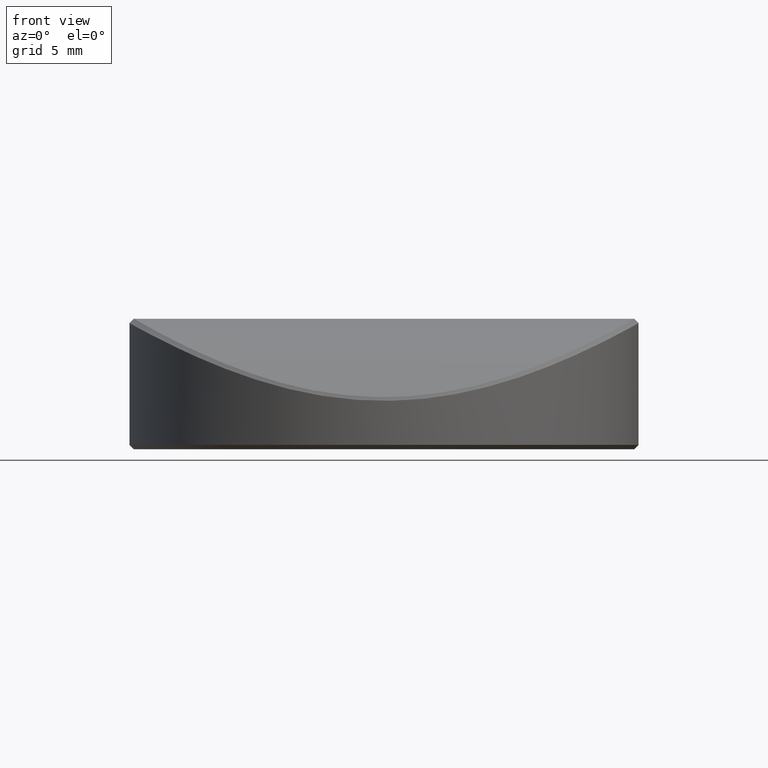
[diagram: clean part render]
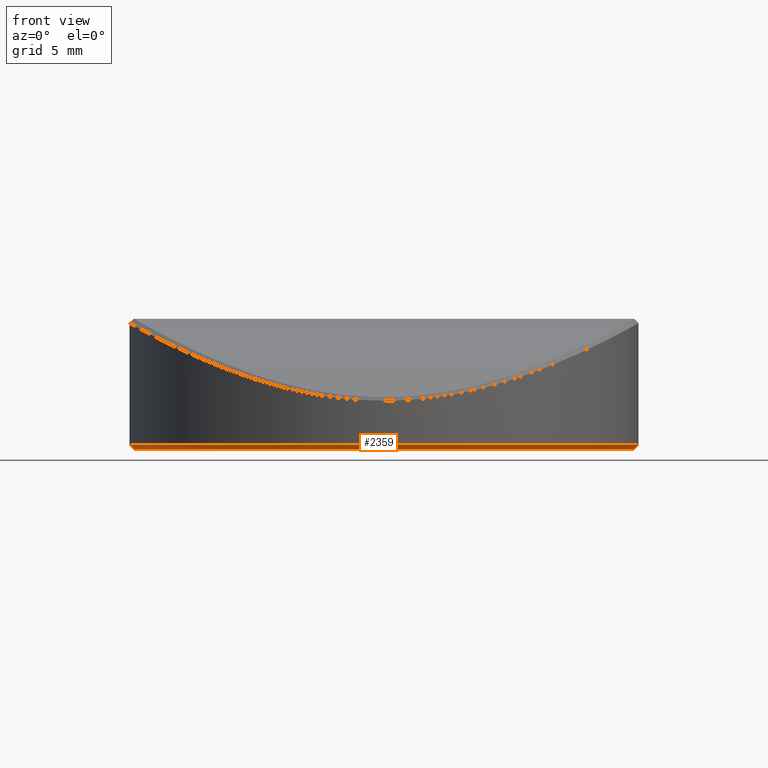
[diagram: same view with one face highlighted and labeled with its STEP entity id]
A machine part, front view. The second image highlights one B-rep face of the part: STEP entity #2359.
In plain terms, the highlighted conical surface has half-angle 45 deg.
Its self-contained STEP definition (entity closure, byte-faithful):
#96 = EDGE_CURVE ( 'NONE', #1534, #875, #676, .T. ) ;
#170 = CARTESIAN_POINT ( 'NONE',  ( -11.69999999999999929, 1.432836755002403087E-15, 0.2000000000000040079 ) ) ;
#179 = CARTESIAN_POINT ( 'NONE',  ( -11.69999999999999929, 0.000000000000000000, 0.2000000000000040079 ) ) ;
#213 = DIRECTION ( 'NONE',  ( -0.000000000000000000, -0.000000000000000000, 1.000000000000000000 ) ) ;
#342 = ORIENTED_EDGE ( 'NONE', *, *, #1141, .F. ) ;
#395 = CARTESIAN_POINT ( 'NONE',  ( -11.49999999999999645, 1.420590287010929336E-15, 0.000000000000000000 ) ) ;
#452 = AXIS2_PLACEMENT_3D ( 'NONE', #2848, #1021, #2380 ) ;
#573 = VERTEX_POINT ( 'NONE', #1094 ) ;
#586 = VECTOR ( 'NONE', #2169, 1000.000000000000114 ) ;
#589 = CARTESIAN_POINT ( 'NONE',  ( 11.49999999999999645, 0.000000000000000000, 0.000000000000000000 ) ) ;
#663 = DIRECTION ( 'NONE',  ( 0.7071067811865443531, 0.000000000000000000, 0.7071067811865506814 ) ) ;
#676 = CIRCLE ( 'NONE', #452, 11.49999999999999645 ) ;
#822 = LINE ( 'NONE', #170, #586 ) ;
#824 = ORIENTED_EDGE ( 'NONE', *, *, #1050, .T. ) ;
#845 = LINE ( 'NONE', #2672, #2304 ) ;
#875 = VERTEX_POINT ( 'NONE', #395 ) ;
#889 = ORIENTED_EDGE ( 'NONE', *, *, #1323, .F. ) ;
#1021 = DIRECTION ( 'NONE',  ( -0.000000000000000000, -0.000000000000000000, -1.000000000000000000 ) ) ;
#1041 = CIRCLE ( 'NONE', #2594, 11.69999999999999929 ) ;
#1050 = EDGE_CURVE ( 'NONE', #1534, #573, #845, .T. ) ;
#1094 = CARTESIAN_POINT ( 'NONE',  ( 11.69999999999999929, 1.432836755002403087E-15, 0.2000000000000040079 ) ) ;
#1141 = EDGE_CURVE ( 'NONE', #875, #1454, #822, .T. ) ;
#1323 = EDGE_CURVE ( 'NONE', #1454, #573, #1041, .T. ) ;
#1454 = VERTEX_POINT ( 'NONE', #179 ) ;
#1475 = DIRECTION ( 'NONE',  ( 1.000000000000000000, 0.000000000000000000, 0.000000000000000000 ) ) ;
#1504 = EDGE_LOOP ( 'NONE', ( #342, #1971, #824, #889 ) ) ;
#1518 = DIRECTION ( 'NONE',  ( -0.000000000000000000, -0.000000000000000000, 1.000000000000000000 ) ) ;
#1534 = VERTEX_POINT ( 'NONE', #589 ) ;
#1653 = AXIS2_PLACEMENT_3D ( 'NONE', #1937, #213, #1475 ) ;
#1708 = DIRECTION ( 'NONE',  ( 1.000000000000000000, 0.000000000000000000, 0.000000000000000000 ) ) ;
#1925 = FACE_OUTER_BOUND ( 'NONE', #1504, .T. ) ;
#1937 = CARTESIAN_POINT ( 'NONE',  ( 0.000000000000000000, 0.000000000000000000, 0.2000000000000040079 ) ) ;
#1971 = ORIENTED_EDGE ( 'NONE', *, *, #96, .F. ) ;
#2169 = DIRECTION ( 'NONE',  ( -0.7071067811865443531, 8.659560562354895880E-17, 0.7071067811865506814 ) ) ;
#2304 = VECTOR ( 'NONE', #663, 1000.000000000000114 ) ;
#2359 = ADVANCED_FACE ( 'NONE', ( #1925 ), #2691, .T. ) ;
#2380 = DIRECTION ( 'NONE',  ( 1.000000000000000000, 0.000000000000000000, 0.000000000000000000 ) ) ;
#2594 = AXIS2_PLACEMENT_3D ( 'NONE', #2837, #1518, #1708 ) ;
#2672 = CARTESIAN_POINT ( 'NONE',  ( 11.69999999999999929, 0.000000000000000000, 0.2000000000000040079 ) ) ;
#2691 = CONICAL_SURFACE ( 'NONE', #1653, 11.69999999999999929, 0.7853981633974439491 ) ;
#2837 = CARTESIAN_POINT ( 'NONE',  ( 0.000000000000000000, 0.000000000000000000, 0.2000000000000040079 ) ) ;
#2848 = CARTESIAN_POINT ( 'NONE',  ( 0.000000000000000000, 0.000000000000000000, 0.000000000000000000 ) ) ;